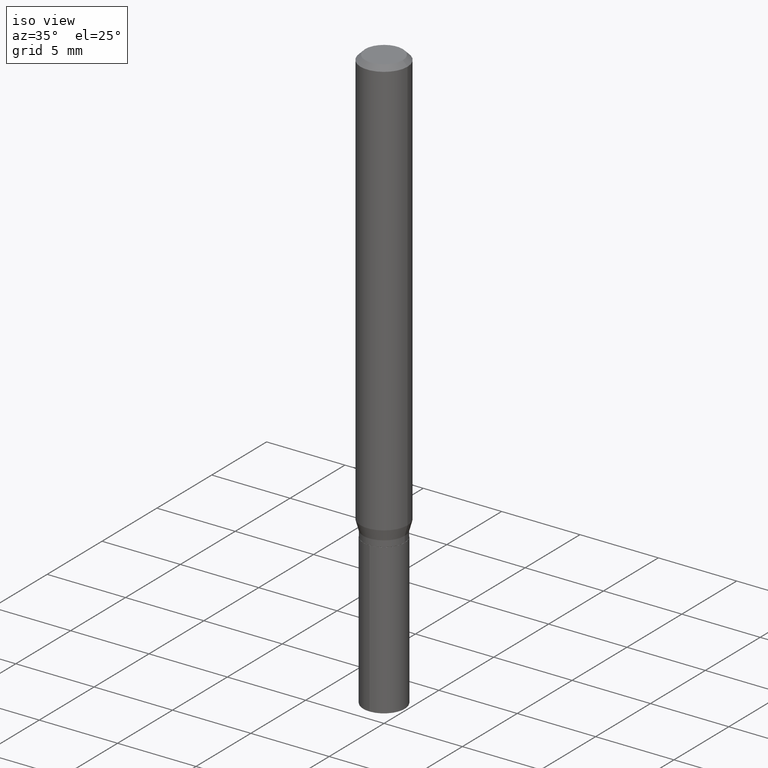
[diagram: clean part render]
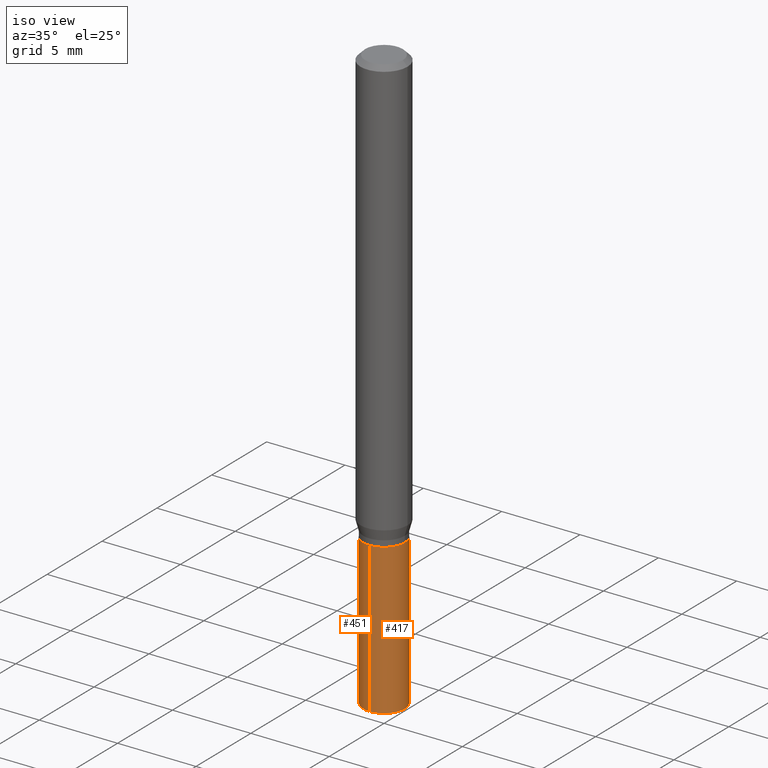
[diagram: same view with one multi-face feature highlighted, each face labeled with its STEP entity id]
A machine part, iso view. The highlighted faces form ONE feature: a constant-radius fillet chain: 2 tangent blend faces with common blend radius 1.3246 mm. The faces share edges in the B-rep.
Their STEP definitions:
[1] entity #417 (Cylinder):
#6 = DIRECTION ( 'NONE',  ( -2.445458899330790108E-29, 3.491495526022433599E-15, 1.000000000000000000 ) ) ;
#58 = CARTESIAN_POINT ( 'NONE',  ( 3.705480366989281044E-16, 0.05214999999999483937, -1.471782055627217201 ) ) ;
#60 = LINE ( 'NONE', #355, #443 ) ;
#65 = CARTESIAN_POINT ( 'NONE',  ( -3.641615036413027182E-16, -0.05215000000000512281, -1.471782055627216756 ) ) ;
#84 = ORIENTED_EDGE ( 'NONE', *, *, #467, .T. ) ;
#96 = DIRECTION ( 'NONE',  ( -2.445458899330790108E-29, 3.491495526022433205E-15, 1.000000000000000000 ) ) ;
#116 = AXIS2_PLACEMENT_3D ( 'NONE', #385, #96, #207 ) ;
#128 = CARTESIAN_POINT ( 'NONE',  ( 3.705480366989282030E-16, 0.05214999999999617164, -1.094500000000000028 ) ) ;
#131 = CIRCLE ( 'NONE', #116, 0.05215000000000000191 ) ;
#134 = VERTEX_POINT ( 'NONE', #58 ) ;
#165 = CYLINDRICAL_SURFACE ( 'NONE', #205, 0.05215000000000000191 ) ;
#176 = CARTESIAN_POINT ( 'NONE',  ( 2.676565608369631794E-29, -3.821426325363822773E-15, -1.094499999999999806 ) ) ;
#197 = DIRECTION ( 'NONE',  ( -2.445458899330790108E-29, 3.491495526022433205E-15, 1.000000000000000000 ) ) ;
#201 = FACE_OUTER_BOUND ( 'NONE', #425, .T. ) ;
#205 = AXIS2_PLACEMENT_3D ( 'NONE', #176, #197, #432 ) ;
#207 = DIRECTION ( 'NONE',  ( -6.982962677686266711E-15, -1.000000000000000000, 2.619221470435534958E-15 ) ) ;
#220 = EDGE_CURVE ( 'NONE', #231, #419, #131, .T. ) ;
#231 = VERTEX_POINT ( 'NONE', #323 ) ;
#257 = CIRCLE ( 'NONE', #324, 0.05215000000000000191 ) ;
#270 = VERTEX_POINT ( 'NONE', #65 ) ;
#290 = ORIENTED_EDGE ( 'NONE', *, *, #220, .F. ) ;
#320 = DIRECTION ( 'NONE',  ( -2.445458899330790108E-29, 3.491495526022433599E-15, 1.000000000000000000 ) ) ;
#323 = CARTESIAN_POINT ( 'NONE',  ( -3.641615036413120366E-16, -0.05215000000000382524, -1.094499999999999806 ) ) ;
#324 = AXIS2_PLACEMENT_3D ( 'NONE', #461, #426, #396 ) ;
#339 = ORIENTED_EDGE ( 'NONE', *, *, #409, .F. ) ;
#347 = CARTESIAN_POINT ( 'NONE',  ( 3.705480366989189339E-16, 0.05214999999999617164, -1.094500000000000028 ) ) ;
#355 = CARTESIAN_POINT ( 'NONE',  ( -3.641615036413120366E-16, -0.05215000000000382524, -1.094499999999999806 ) ) ;
#370 = ORIENTED_EDGE ( 'NONE', *, *, #438, .T. ) ;
#385 = CARTESIAN_POINT ( 'NONE',  ( 2.676565608369631794E-29, -3.821426325363822773E-15, -1.094499999999999806 ) ) ;
#396 = DIRECTION ( 'NONE',  ( -6.982962677686266711E-15, -1.000000000000000000, 5.238442940871069917E-15 ) ) ;
#409 = EDGE_CURVE ( 'NONE', #270, #231, #60, .T. ) ;
#412 = VECTOR ( 'NONE', #320, 39.37007874015748143 ) ;
#417 = ADVANCED_FACE ( 'NONE', ( #201 ), #165, .T. ) ;
#419 = VERTEX_POINT ( 'NONE', #128 ) ;
#421 = LINE ( 'NONE', #347, #412 ) ;
#425 = EDGE_LOOP ( 'NONE', ( #84, #370, #290, #339 ) ) ;
#426 = DIRECTION ( 'NONE',  ( -2.445458899330790108E-29, 3.491495526022433205E-15, 1.000000000000000000 ) ) ;
#432 = DIRECTION ( 'NONE',  ( -6.982962677686266711E-15, -1.000000000000000000, 2.619221470435534958E-15 ) ) ;
#438 = EDGE_CURVE ( 'NONE', #134, #419, #421, .T. ) ;
#443 = VECTOR ( 'NONE', #6, 39.37007874015748143 ) ;
#461 = CARTESIAN_POINT ( 'NONE',  ( 3.599193368861023933E-29, -5.138704934634797986E-15, -1.471782055627216979 ) ) ;
#467 = EDGE_CURVE ( 'NONE', #270, #134, #257, .T. ) ;
[2] entity #451 (Cylinder):
#6 = DIRECTION ( 'NONE',  ( -2.445458899330790108E-29, 3.491495526022433599E-15, 1.000000000000000000 ) ) ;
#14 = DIRECTION ( 'NONE',  ( -2.445458899330790108E-29, 3.491495526022433205E-15, 1.000000000000000000 ) ) ;
#46 = CARTESIAN_POINT ( 'NONE',  ( 2.676565608369631794E-29, -3.821426325363822773E-15, -1.094499999999999806 ) ) ;
#58 = CARTESIAN_POINT ( 'NONE',  ( 3.705480366989281044E-16, 0.05214999999999483937, -1.471782055627217201 ) ) ;
#60 = LINE ( 'NONE', #355, #443 ) ;
#61 = CARTESIAN_POINT ( 'NONE',  ( 3.599193368861023933E-29, -5.138704934634797986E-15, -1.471782055627216979 ) ) ;
#65 = CARTESIAN_POINT ( 'NONE',  ( -3.641615036413027182E-16, -0.05215000000000512281, -1.471782055627216756 ) ) ;
#88 = DIRECTION ( 'NONE',  ( -2.445458899330790108E-29, 3.491495526022433205E-15, 1.000000000000000000 ) ) ;
#90 = CIRCLE ( 'NONE', #387, 0.05215000000000000191 ) ;
#124 = ORIENTED_EDGE ( 'NONE', *, *, #346, .F. ) ;
#128 = CARTESIAN_POINT ( 'NONE',  ( 3.705480366989282030E-16, 0.05214999999999617164, -1.094500000000000028 ) ) ;
#134 = VERTEX_POINT ( 'NONE', #58 ) ;
#135 = CARTESIAN_POINT ( 'NONE',  ( 2.676565608369631794E-29, -3.821426325363822773E-15, -1.094499999999999806 ) ) ;
#169 = DIRECTION ( 'NONE',  ( -6.982962677686266711E-15, -1.000000000000000000, 2.619221470435534958E-15 ) ) ;
#170 = DIRECTION ( 'NONE',  ( -2.445458899330790108E-29, 3.491495526022433205E-15, 1.000000000000000000 ) ) ;
#178 = ORIENTED_EDGE ( 'NONE', *, *, #438, .F. ) ;
#231 = VERTEX_POINT ( 'NONE', #323 ) ;
#233 = FACE_OUTER_BOUND ( 'NONE', #375, .T. ) ;
#239 = EDGE_CURVE ( 'NONE', #134, #270, #90, .T. ) ;
#270 = VERTEX_POINT ( 'NONE', #65 ) ;
#309 = DIRECTION ( 'NONE',  ( -6.982962677686266711E-15, -1.000000000000000000, 2.619221470435534958E-15 ) ) ;
#314 = DIRECTION ( 'NONE',  ( -6.982962677686266711E-15, -1.000000000000000000, 5.238442940871069917E-15 ) ) ;
#320 = DIRECTION ( 'NONE',  ( -2.445458899330790108E-29, 3.491495526022433599E-15, 1.000000000000000000 ) ) ;
#323 = CARTESIAN_POINT ( 'NONE',  ( -3.641615036413120366E-16, -0.05215000000000382524, -1.094499999999999806 ) ) ;
#346 = EDGE_CURVE ( 'NONE', #419, #231, #400, .T. ) ;
#347 = CARTESIAN_POINT ( 'NONE',  ( 3.705480366989189339E-16, 0.05214999999999617164, -1.094500000000000028 ) ) ;
#355 = CARTESIAN_POINT ( 'NONE',  ( -3.641615036413120366E-16, -0.05215000000000382524, -1.094499999999999806 ) ) ;
#375 = EDGE_LOOP ( 'NONE', ( #178, #379, #395, #124 ) ) ;
#379 = ORIENTED_EDGE ( 'NONE', *, *, #239, .T. ) ;
#381 = CYLINDRICAL_SURFACE ( 'NONE', #486, 0.05215000000000000191 ) ;
#387 = AXIS2_PLACEMENT_3D ( 'NONE', #61, #170, #314 ) ;
#395 = ORIENTED_EDGE ( 'NONE', *, *, #409, .T. ) ;
#400 = CIRCLE ( 'NONE', #463, 0.05215000000000000191 ) ;
#409 = EDGE_CURVE ( 'NONE', #270, #231, #60, .T. ) ;
#412 = VECTOR ( 'NONE', #320, 39.37007874015748143 ) ;
#419 = VERTEX_POINT ( 'NONE', #128 ) ;
#421 = LINE ( 'NONE', #347, #412 ) ;
#438 = EDGE_CURVE ( 'NONE', #134, #419, #421, .T. ) ;
#443 = VECTOR ( 'NONE', #6, 39.37007874015748143 ) ;
#451 = ADVANCED_FACE ( 'NONE', ( #233 ), #381, .T. ) ;
#463 = AXIS2_PLACEMENT_3D ( 'NONE', #46, #88, #309 ) ;
#486 = AXIS2_PLACEMENT_3D ( 'NONE', #135, #14, #169 ) ;